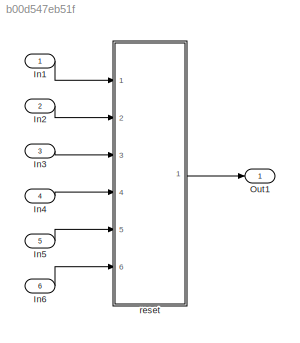
MODEL slx_b00d547eb51f
KIND model
CONFIG AbsTol = auto
CONFIG EnableMultiTasking = off
CONFIG FixedStep = auto
CONFIG MaxStep = auto
CONFIG MinStep = auto
CONFIG RelTol = 1e-3
CONFIG SampleTimeConstraint = Unconstrained
CONFIG Solver = FixedStepDiscrete
CONFIG SolverName = FixedStepDiscrete
CONFIG StartTime = 0.0
CONFIG StopTime = 10.0
BLOCK [Inport] In1
  IconDisplay = Port number
BLOCK [Inport] In2
  IconDisplay = Port number
  Port = 2
BLOCK [Inport] In3
  IconDisplay = Port number
  Port = 3
BLOCK [Inport] In4
  IconDisplay = Port number
  Port = 4
BLOCK [Inport] In5
  IconDisplay = Port number
  Port = 5
BLOCK [Inport] In6
  IconDisplay = Port number
  Port = 6
BLOCK [Outport] Out1
  IconDisplay = Port number
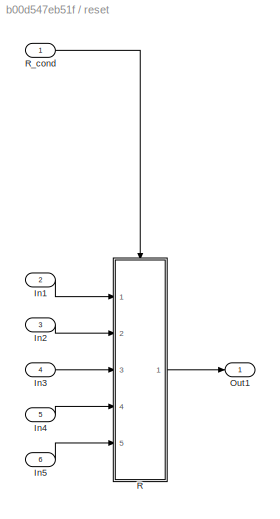
BLOCK [SubSystem] reset
  AncestorBlock = Block_TestLib/reset
  Ports = [6, 1]
  RequestExecContextInheritance = off
  Variant = off
BLOCK [Inport] reset/In1
  IconDisplay = Port number
  Port = 2
BLOCK [Inport] reset/In2
  IconDisplay = Port number
  Port = 3
BLOCK [Inport] reset/In3
  IconDisplay = Port number
  Port = 4
BLOCK [Inport] reset/In4
  IconDisplay = Port number
  Port = 5
BLOCK [Inport] reset/In5
  IconDisplay = Port number
  Port = 6
BLOCK [Outport] reset/Out1
  IconDisplay = Port number
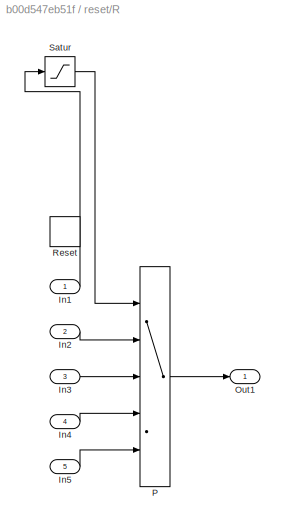
BLOCK [SubSystem] reset/R
  Ports = [5, 1, 0, 0, 0, 0, 0, 0, 1]
  RequestExecContextInheritance = off
  TreatAsAtomicUnit = on
  Variant = off
BLOCK [Inport] reset/R/In1
  IconDisplay = Port number
  OutMax = 3
  OutMin = 0
BLOCK [Inport] reset/R/In2
  IconDisplay = Port number
  Port = 2
  PortDimensions = [2,3]
BLOCK [Inport] reset/R/In3
  IconDisplay = Port number
  Port = 3
  PortDimensions = [2,3]
BLOCK [Inport] reset/R/In4
  IconDisplay = Port number
  Port = 4
  PortDimensions = [2,3]
BLOCK [Inport] reset/R/In5
  IconDisplay = Port number
  Port = 5
  PortDimensions = [2,3]
BLOCK [Outport] reset/R/Out1
  IconDisplay = Port number
BLOCK [MultiPortSwitch] reset/R/P
  DataPortOrder = Zero-based contiguous
  InputSameDT = off
  Inputs = 4
  Ports = [5, 1]
  SaturateOnIntegerOverflow = off
BLOCK [ResetPort] reset/R/Reset
  DisableCoverage = on
BLOCK [Saturate] reset/R/Satur
  InputPortMap = u0
  LowerLimit = 0
  Ports = [1, 1]
  UpperLimit = 3
BLOCK [Inport] reset/R_cond
  IconDisplay = Port number
  OutDataTypeStr = boolean
LINE In1:1 -> reset:1
LINE In2:1 -> reset:2
LINE In3:1 -> reset:3
LINE In4:1 -> reset:4
LINE In5:1 -> reset:5
LINE In6:1 -> reset:6
LINE reset:1 -> Out1:1
